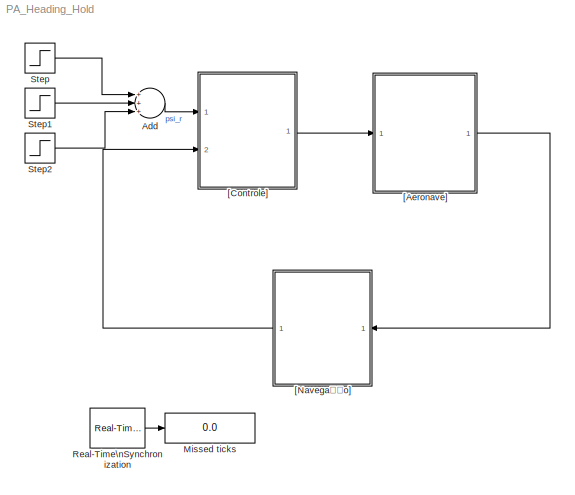
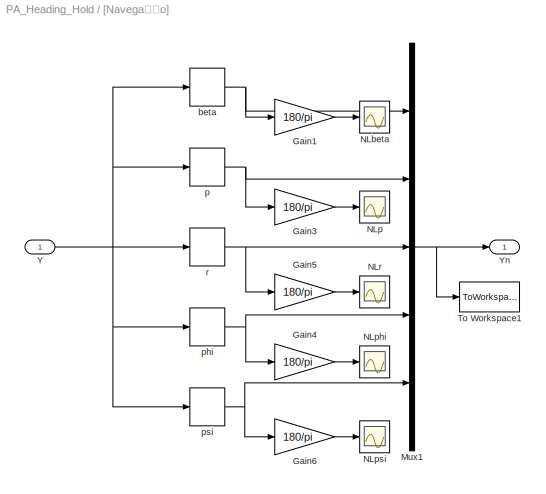
MODEL PA_Heading_Hold
KIND model
BLOCK [Sum] Add
  InputSameDT = off
  Inputs = +++
  OutDataTypeStr = Inherit: Inherit via internal rule
  Ports = [3, 1]
  SID = 699
  SaturateOnIntegerOverflow = off
BLOCK [Display] Missed ticks
  Commented = on
  Decimation = 1
  Ports = [1]
  SID = 698
BLOCK [Reference] Real-Time\nSynchronization  REF=sldrtlib/Real-Time\nSynchronization
  Commented = on
  MaxMissedTicks = inf
  Ports = [0, 1]
  SID = 656
  SampleTime = 0.01
  ShowMissedTicks = on
  SourceBlock = sldrtlib/Real-Time\nSynchronization
  SourceType = Simulink Desktop Real-Time Synchronization
  YieldWhenWaiting = on
BLOCK [Step] Step
  After = degtorad(45)
  SID = 700
  SampleTime = 0
  Time = 50
BLOCK [Step] Step1
  After = degtorad(-90)
  SID = 701
  SampleTime = 0
  Time = 150
BLOCK [Step] Step2
  After = degtorad(45)
  SID = 702
  SampleTime = 0
  Time = 250
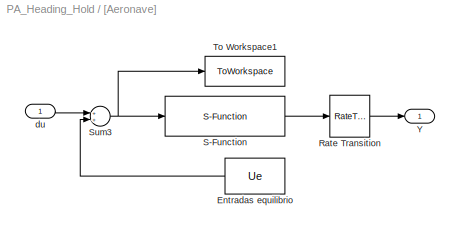
BLOCK [SubSystem] [Aeronave]
  Ports = [1, 1]
  RequestExecContextInheritance = off
  SID = 211
  Variant = off
BLOCK [Constant] [Aeronave]/Entradas equilibrio
  SID = 213
  Value = Ue
BLOCK [RateTransition] [Aeronave]/Rate Transition
  OutPortSampleTime = 0.01
  SID = 676
BLOCK [S-Function] [Aeronave]/S-Function
  EnableBusSupport = off
  FunctionName = sfunction_piper
  Parameters = par_gen,par_aero,par_prop, Xe
  Ports = [1, 1]
  SFunctionDeploymentMode = off
  SID = 216
BLOCK [Sum] [Aeronave]/Sum3
  InputSameDT = off
  OutDataTypeStr = Inherit: Inherit via internal rule
  Ports = [2, 1]
  SID = 217
  SaturateOnIntegerOverflow = off
BLOCK [ToWorkspace] [Aeronave]/To Workspace1
  MaxDataPoints = inf
  Ports = [1]
  SID = 526
  SampleTime = -1
  SaveFormat = Timeseries
  VariableName = EMB_U
BLOCK [Outport] [Aeronave]/Y
  IconDisplay = Port number
  SID = 219
BLOCK [Inport] [Aeronave]/du
  IconDisplay = Port number
  SID = 212
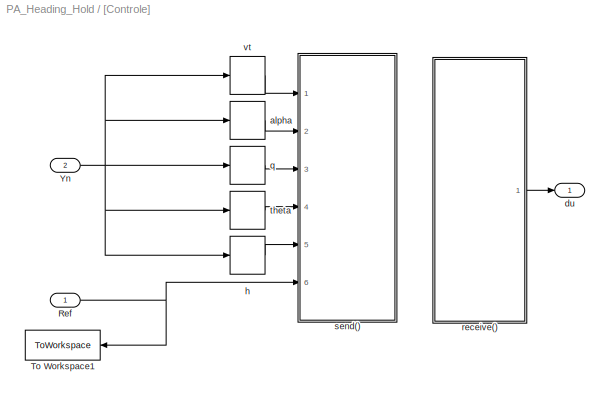
BLOCK [SubSystem] [Controle]
  Ports = [2, 1]
  RequestExecContextInheritance = off
  SID = 561
  Variant = off
BLOCK [Inport] [Controle]/Ref
  IconDisplay = Port number
  SID = 562
BLOCK [ToWorkspace] [Controle]/To Workspace1
  MaxDataPoints = inf
  Ports = [1]
  SID = 533
  SampleTime = -1
  SaveFormat = Timeseries
  VariableName = EMBstep
BLOCK [Inport] [Controle]/Yn
  IconDisplay = Port number
  Port = 2
  SID = 617
BLOCK [Selector] [Controle]/alpha
  IndexOptions = Index vector (dialog)
  Indices = [2]
  InputPortWidth = 5
  OutputSizes = 1
  Ports = [1, 1]
  SID = 601
BLOCK [Outport] [Controle]/du
  IconDisplay = Port number
  SID = 608
BLOCK [Selector] [Controle]/h
  IndexOptions = Index vector (dialog)
  Indices = [5]
  InputPortWidth = 5
  OutputSizes = 1
  Ports = [1, 1]
  SID = 602
BLOCK [Selector] [Controle]/q
  IndexOptions = Index vector (dialog)
  Indices = [3]
  InputPortWidth = 5
  OutputSizes = 1
  Ports = [1, 1]
  SID = 598
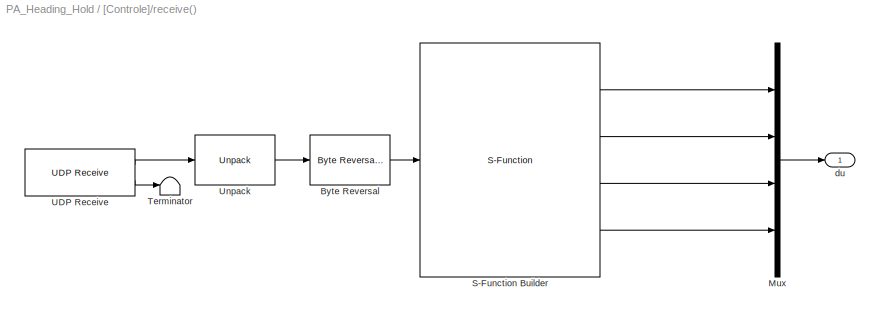
BLOCK [SubSystem] [Controle]/receive()
  Ports = [0, 1]
  RequestExecContextInheritance = off
  SID = 566
  Variant = off
BLOCK [Reference] [Controle]/receive()/Byte Reversal  REF=xpcutilitieslib/Byte Reversal 
  Ports = [1, 1]
  SID = 567
  SourceBlock = xpcutilitieslib/Byte Reversal
  SourceType = xpcreverseendian
  numInp = 1
BLOCK [Mux] [Controle]/receive()/Mux
  DisplayOption = bar
  Ports = [4, 1]
  SID = 604
BLOCK [S-Function] [Controle]/receive()/S-Function Builder
  CopyFcn = set_param(gcbh,'LinkStatus','none')
  EnableBusSupport = off
  FunctionName = dados_uC_lat
  InitFcn = try, set_param(gcb,'FunctionName','dados_uC_lat'), end
  OpenFcn = sfunctionwizard(gcbh)
  Ports = [1, 4]
  PreSaveFcn = try, set_param(gcb,'FunctionName','dados_uC_lat'), end
  SFunctionDeploymentMode = off
  SFunctionModules = dados_uC_lat_wrapper
  SID = 569
  WizardData = DataTag0
BLOCK [Terminator] [Controle]/receive()/Terminator
  SID = 570
BLOCK [Reference] [Controle]/receive()/UDP Receive  REF=instrumentlib/UDP Receive
  ByteOrder = BigEndian
  DataSize = 16
  DataType = uint8
  EnableBlockingMode = off
  Host = 192.168.1.101
  LocalPort = 45000
  Port = 45004
  Ports = [0, 2]
  SID = 571
  SampleTime = 0.01
  SourceBlock = instrumentlib/UDP Receive
  SourceType = UDP Receive
  Timeout = 10
BLOCK [Reference] [Controle]/receive()/Unpack  REF=xpcobsoletelib/Utilities/Unpack 
  Ports = [1, 1]
  SID = 572
  SourceBlock = xpcobsoletelib/Utilities/Unpack
  SourceType = xpcbyte2any
  byteAlign = 1
  datatypes = {'uint8'}
  dimensions = {[1 16]}
BLOCK [Outport] [Controle]/receive()/du
  IconDisplay = Port number
  SID = 576
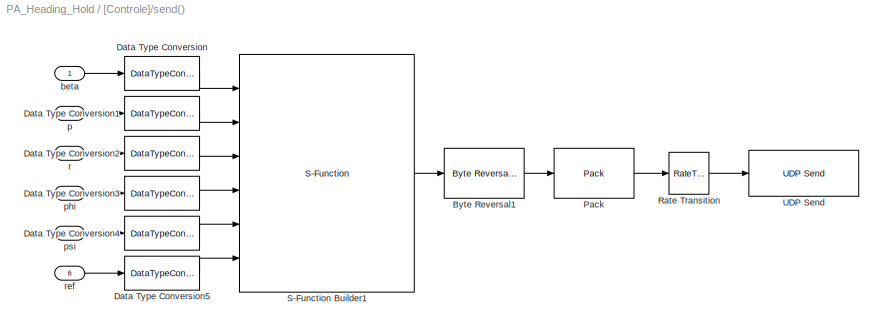
BLOCK [SubSystem] [Controle]/send()
  Ports = [6]
  RequestExecContextInheritance = off
  SID = 577
  Variant = off
BLOCK [Reference] [Controle]/send()/Byte Reversal1  REF=xpcutilitieslib/Byte Reversal 
  Ports = [1, 1]
  SID = 582
  SourceBlock = xpcutilitieslib/Byte Reversal
  SourceType = xpcreverseendian
  numInp = 1
BLOCK [DataTypeConversion] [Controle]/send()/Data Type Conversion
  OutDataTypeStr = single
  RndMeth = Floor
  SID = 583
  SaturateOnIntegerOverflow = off
BLOCK [DataTypeConversion] [Controle]/send()/Data Type Conversion1
  OutDataTypeStr = single
  RndMeth = Floor
  SID = 584
  SaturateOnIntegerOverflow = off
BLOCK [DataTypeConversion] [Controle]/send()/Data Type Conversion2
  OutDataTypeStr = single
  RndMeth = Floor
  SID = 585
  SaturateOnIntegerOverflow = off
BLOCK [DataTypeConversion] [Controle]/send()/Data Type Conversion3
  OutDataTypeStr = single
  RndMeth = Floor
  SID = 586
  SaturateOnIntegerOverflow = off
BLOCK [DataTypeConversion] [Controle]/send()/Data Type Conversion4
  OutDataTypeStr = single
  RndMeth = Floor
  SID = 595
  SaturateOnIntegerOverflow = off
BLOCK [DataTypeConversion] [Controle]/send()/Data Type Conversion5
  OutDataTypeStr = single
  RndMeth = Floor
  SID = 610
  SaturateOnIntegerOverflow = off
BLOCK [Reference] [Controle]/send()/Pack  REF=xpcobsoletelib/Utilities/Pack 
  Ports = [1, 1]
  SID = 587
  SourceBlock = xpcobsoletelib/Utilities/Pack
  SourceType = xpcany2byte
  byteAlign = 1
  datatypes = {'uint8'}
BLOCK [RateTransition] [Controle]/send()/Rate Transition
  OutPortSampleTime = 0.01
  SID = 677
BLOCK [S-Function] [Controle]/send()/S-Function Builder1
  CopyFcn = set_param(gcbh,'LinkStatus','none')
  EnableBusSupport = off
  FunctionName = dados_matlab_lat
  InitFcn = try, set_param(gcb,'FunctionName','dados_matlab_lat'), end
  OpenFcn = sfunctionwizard(gcbh)
  Ports = [6, 1]
  PreSaveFcn = try, set_param(gcb,'FunctionName','dados_matlab_lat'), end
  SFunctionDeploymentMode = off
  SFunctionModules = dados_matlab_lat_wrapper
  SID = 589
  WizardData = DataTag1
BLOCK [Reference] [Controle]/send()/UDP Send  REF=instrumentlib/UDP Send
  ByteOrder = BigEndian
  EnableBlockingMode = on
  Host = 192.168.1.101
  LocalPort = 45001
  Port = 45004
  Ports = [1]
  SID = 590
  SourceBlock = instrumentlib/UDP Send
  SourceType = UDP Send
BLOCK [Inport] [Controle]/send()/beta
  IconDisplay = Port number
  SID = 578
BLOCK [Inport] [Controle]/send()/p
  IconDisplay = Port number
  Port = 2
  SID = 579
BLOCK [Inport] [Controle]/send()/phi
  IconDisplay = Port number
  Port = 4
  SID = 581
BLOCK [Inport] [Controle]/send()/psi
  IconDisplay = Port number
  Port = 5
  SID = 596
BLOCK [Inport] [Controle]/send()/r
  IconDisplay = Port number
  Port = 3
  SID = 580
BLOCK [Inport] [Controle]/send()/ref
  IconDisplay = Port number
  Port = 6
  SID = 603
BLOCK [Selector] [Controle]/theta
  IndexOptions = Index vector (dialog)
  Indices = [4]
  InputPortWidth = 5
  OutputSizes = 1
  Ports = [1, 1]
  SID = 599
BLOCK [Selector] [Controle]/vt
  IndexOptions = Index vector (dialog)
  Indices = [1]
  InputPortWidth = 5
  OutputSizes = 1
  Ports = [1, 1]
  SID = 600
BLOCK [SubSystem] [Navegação]
  Ports = [1, 1]
  RequestExecContextInheritance = off
  SID = 267
  Variant = off
BLOCK [Gain] [Navegação]/Gain1
  Gain = 180/pi
  OutDataTypeStr = Inherit: Inherit via internal rule
  ParamDataTypeStr = Inherit: Inherit via internal rule
  SID = 697
  SaturateOnIntegerOverflow = off
BLOCK [Gain] [Navegação]/Gain3
  Gain = 180/pi
  OutDataTypeStr = Inherit: Inherit via internal rule
  ParamDataTypeStr = Inherit: Inherit via internal rule
  SID = 679
  SaturateOnIntegerOverflow = off
BLOCK [Gain] [Navegação]/Gain4
  Gain = 180/pi
  OutDataTypeStr = Inherit: Inherit via internal rule
  ParamDataTypeStr = Inherit: Inherit via internal rule
  SID = 680
  SaturateOnIntegerOverflow = off
BLOCK [Gain] [Navegação]/Gain5
  Gain = 180/pi
  OutDataTypeStr = Inherit: Inherit via internal rule
  ParamDataTypeStr = Inherit: Inherit via internal rule
  SID = 681
  SaturateOnIntegerOverflow = off
BLOCK [Gain] [Navegação]/Gain6
  Gain = 180/pi
  OutDataTypeStr = Inherit: Inherit via internal rule
  ParamDataTypeStr = Inherit: Inherit via internal rule
  SID = 682
  SaturateOnIntegerOverflow = off
BLOCK [Mux] [Navegação]/Mux1
  DisplayOption = bar
  Inputs = 5
  Ports = [5, 1]
  SID = 684
BLOCK [Scope] [Navegação]/NLbeta
  Ports = [1]
  SID = 689
  ScopeSpecificationString = Simulink.scopes.TimeScopeBlockCfg('CurrentConfiguration', extmgr.ConfigurationSet(extmgr.Configuration('Core','General UI',true),extmgr.Configuration('Core','Source UI',true),extmgr.Configuration('Sources','WiredSimulink',true,'DataLoggingVariableName','ScopeData5','DataLoggingLimitDataPoints',true,'DataLoggingSaveFormat','Array','DataLoggingDecimation','1','DataLoggingDecimateData',true),extmgr.C...<+183ch>
BLOCK [Scope] [Navegação]/NLp
  Ports = [1]
  SID = 685
  ScopeSpecificationString = Simulink.scopes.TimeScopeBlockCfg('CurrentConfiguration', extmgr.ConfigurationSet(extmgr.Configuration('Core','General UI',true),extmgr.Configuration('Core','Source UI',true),extmgr.Configuration('Sources','WiredSimulink',true,'DataLoggingVariableName','ScopeData1','DataLoggingLimitDataPoints',true,'DataLoggingSaveFormat','Array','DataLoggingDecimation','1','DataLoggingDecimateData',true),extmgr.C...<+1489ch>
BLOCK [Scope] [Navegação]/NLphi
  Ports = [1]
  SID = 686
  ScopeSpecificationString = Simulink.scopes.TimeScopeBlockCfg('CurrentConfiguration', extmgr.ConfigurationSet(extmgr.Configuration('Core','General UI',true),extmgr.Configuration('Core','Source UI',true),extmgr.Configuration('Sources','WiredSimulink',true,'DataLoggingVariableName','ScopeData2','DataLoggingLimitDataPoints',true,'DataLoggingSaveFormat','Array','DataLoggingDecimation','1','DataLoggingDecimateData',true),extmgr.C...<+1591ch>
BLOCK [Scope] [Navegação]/NLpsi
  Ports = [1]
  SID = 687
  ScopeSpecificationString = Simulink.scopes.TimeScopeBlockCfg('CurrentConfiguration', extmgr.ConfigurationSet(extmgr.Configuration('Core','General UI',true),extmgr.Configuration('Core','Source UI',true),extmgr.Configuration('Sources','WiredSimulink',true,'DataLoggingVariableName','ScopeData3','DataLoggingLimitDataPoints',true,'DataLoggingSaveFormat','Array','DataLoggingDecimation','1','DataLoggingDecimateData',true),extmgr.C...<+1525ch>
BLOCK [Scope] [Navegação]/NLr
  Ports = [1]
  SID = 688
  ScopeSpecificationString = C++SS(StrPVP('SaveName','ScopeData4'),StrPVP('LimitDataPoints','on'),StrPVP('DataFormat','Array'),StrPVP('Decimation','1'),StrPVP('BlockParamSampleInput','off'))
BLOCK [ToWorkspace] [Navegação]/To Workspace1
  MaxDataPoints = inf
  Ports = [1]
  SID = 690
  SampleTime = -1
  SaveFormat = Timeseries
  VariableName = EMB_Y
BLOCK [Inport] [Navegação]/Y
  IconDisplay = Port number
  SID = 678
BLOCK [Outport] [Navegação]/Yn
  IconDisplay = Port number
  SID = 696
BLOCK [Selector] [Navegação]/beta
  IndexOptions = Index vector (dialog)
  Indices = [3]
  InputPortWidth = 12
  OutputSizes = 1
  Ports = [1, 1]
  SID = 695
BLOCK [Selector] [Navegação]/p
  IndexOptions = Index vector (dialog)
  Indices = [4]
  InputPortWidth = 12
  OutputSizes = 1
  Ports = [1, 1]
  SID = 691
BLOCK [Selector] [Navegação]/phi
  IndexOptions = Index vector (dialog)
  Indices = [7]
  InputPortWidth = 12
  OutputSizes = 1
  Ports = [1, 1]
  SID = 692
BLOCK [Selector] [Navegação]/psi
  IndexOptions = Index vector (dialog)
  Indices = [9]
  InputPortWidth = 12
  OutputSizes = 1
  Ports = [1, 1]
  SID = 693
BLOCK [Selector] [Navegação]/r
  IndexOptions = Index vector (dialog)
  Indices = [6]
  InputPortWidth = 12
  OutputSizes = 1
  Ports = [1, 1]
  SID = 694
LINE Add:1 -> [Controle]:1
LINE Real-Time\nSynchronization:1 -> Missed ticks:1
LINE Step1:1 -> Add:2
LINE Step2:1 -> Add:3
LINE Step:1 -> Add:1
LINE [Aeronave]/Entradas equilibrio:1 -> [Aeronave]/Sum3:2
LINE [Aeronave]/Rate Transition:1 -> [Aeronave]/Y:1
LINE [Aeronave]/S-Function:1 -> [Aeronave]/Rate Transition:1
NET [Aeronave]/Sum3:1 -> [Aeronave]/S-Function:1, [Aeronave]/To Workspace1:1
LINE [Aeronave]/du:1 -> [Aeronave]/Sum3:1
LINE [Aeronave]:1 -> [Navegação]:1
NET [Controle]/Ref:1 -> [Controle]/To Workspace1:1, [Controle]/send():6
NET [Controle]/Yn:1 -> [Controle]/alpha:1, [Controle]/h:1, [Controle]/q:1, [Controle]/theta:1, [Controle]/vt:1
LINE [Controle]/alpha:1 -> [Controle]/send():2
LINE [Controle]/h:1 -> [Controle]/send():5
LINE [Controle]/q:1 -> [Controle]/send():3
LINE [Controle]/receive()/Byte Reversal:1 -> [Controle]/receive()/S-Function Builder:1
LINE [Controle]/receive()/Mux:1 -> [Controle]/receive()/du:1
LINE [Controle]/receive()/S-Function Builder:1 -> [Controle]/receive()/Mux:1
LINE [Controle]/receive()/S-Function Builder:2 -> [Controle]/receive()/Mux:2
LINE [Controle]/receive()/S-Function Builder:3 -> [Controle]/receive()/Mux:3
LINE [Controle]/receive()/S-Function Builder:4 -> [Controle]/receive()/Mux:4
LINE [Controle]/receive()/UDP Receive:1 -> [Controle]/receive()/Unpack:1
LINE [Controle]/receive()/UDP Receive:2 -> [Controle]/receive()/Terminator:1
LINE [Controle]/receive()/Unpack:1 -> [Controle]/receive()/Byte Reversal:1
LINE [Controle]/receive():1 -> [Controle]/du:1
LINE [Controle]/send()/Byte Reversal1:1 -> [Controle]/send()/Pack:1
LINE [Controle]/send()/Data Type Conversion1:1 -> [Controle]/send()/S-Function Builder1:2
LINE [Controle]/send()/Data Type Conversion2:1 -> [Controle]/send()/S-Function Builder1:3
LINE [Controle]/send()/Data Type Conversion3:1 -> [Controle]/send()/S-Function Builder1:4
LINE [Controle]/send()/Data Type Conversion4:1 -> [Controle]/send()/S-Function Builder1:5
LINE [Controle]/send()/Data Type Conversion5:1 -> [Controle]/send()/S-Function Builder1:6
LINE [Controle]/send()/Data Type Conversion:1 -> [Controle]/send()/S-Function Builder1:1
LINE [Controle]/send()/Pack:1 -> [Controle]/send()/Rate Transition:1
LINE [Controle]/send()/Rate Transition:1 -> [Controle]/send()/UDP Send:1
LINE [Controle]/send()/S-Function Builder1:1 -> [Controle]/send()/Byte Reversal1:1
LINE [Controle]/send()/beta:1 -> [Controle]/send()/Data Type Conversion:1
LINE [Controle]/send()/p:1 -> [Controle]/send()/Data Type Conversion1:1
LINE [Controle]/send()/phi:1 -> [Controle]/send()/Data Type Conversion3:1
LINE [Controle]/send()/psi:1 -> [Controle]/send()/Data Type Conversion4:1
LINE [Controle]/send()/r:1 -> [Controle]/send()/Data Type Conversion2:1
LINE [Controle]/send()/ref:1 -> [Controle]/send()/Data Type Conversion5:1
LINE [Controle]/theta:1 -> [Controle]/send():4
LINE [Controle]/vt:1 -> [Controle]/send():1
LINE [Controle]:1 -> [Aeronave]:1
LINE [Navegação]/Gain1:1 -> [Navegação]/NLbeta:1
LINE [Navegação]/Gain3:1 -> [Navegação]/NLp:1
LINE [Navegação]/Gain4:1 -> [Navegação]/NLphi:1
LINE [Navegação]/Gain5:1 -> [Navegação]/NLr:1
LINE [Navegação]/Gain6:1 -> [Navegação]/NLpsi:1
NET [Navegação]/Mux1:1 -> [Navegação]/To Workspace1:1, [Navegação]/Yn:1
NET [Navegação]/Y:1 -> [Navegação]/beta:1, [Navegação]/p:1, [Navegação]/phi:1, [Navegação]/psi:1, [Navegação]/r:1
NET [Navegação]/beta:1 -> [Navegação]/Gain1:1, [Navegação]/Mux1:1
NET [Navegação]/p:1 -> [Navegação]/Gain3:1, [Navegação]/Mux1:2
NET [Navegação]/phi:1 -> [Navegação]/Gain4:1, [Navegação]/Mux1:4
NET [Navegação]/psi:1 -> [Navegação]/Gain6:1, [Navegação]/Mux1:5
NET [Navegação]/r:1 -> [Navegação]/Gain5:1, [Navegação]/Mux1:3
LINE [Navegação]:1 -> [Controle]:2
note: NET lines group one-source signal fan-out (src -> all destinations, sorted); 1:1 wires keep LINE
